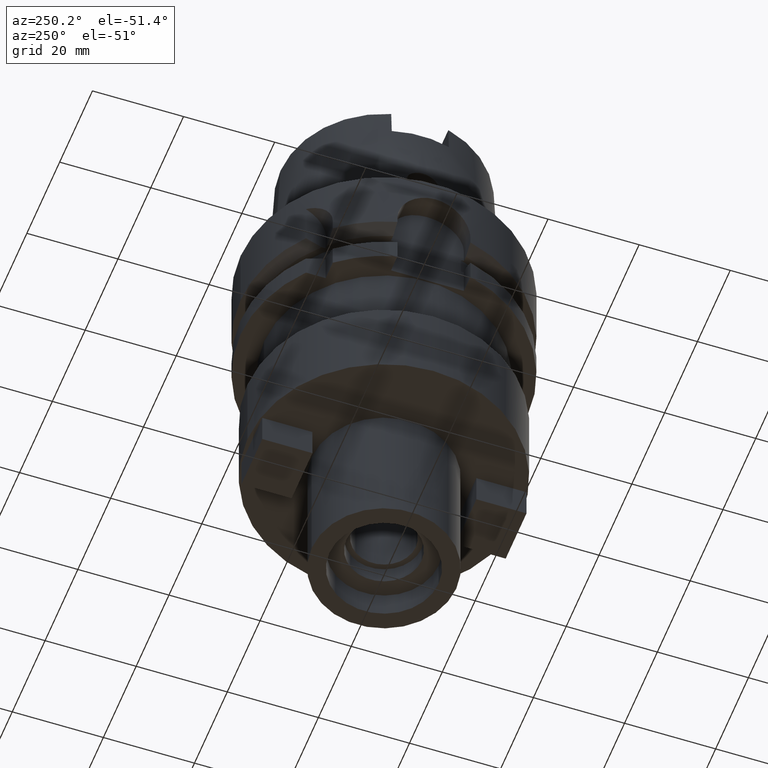
[diagram: clean part render]
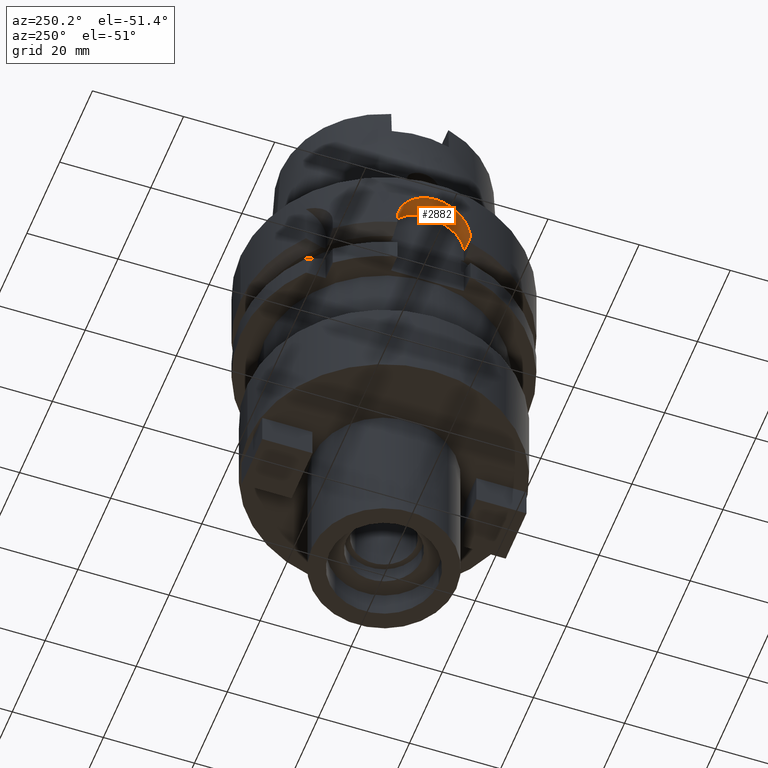
[diagram: same view with one face highlighted and labeled with its STEP entity id]
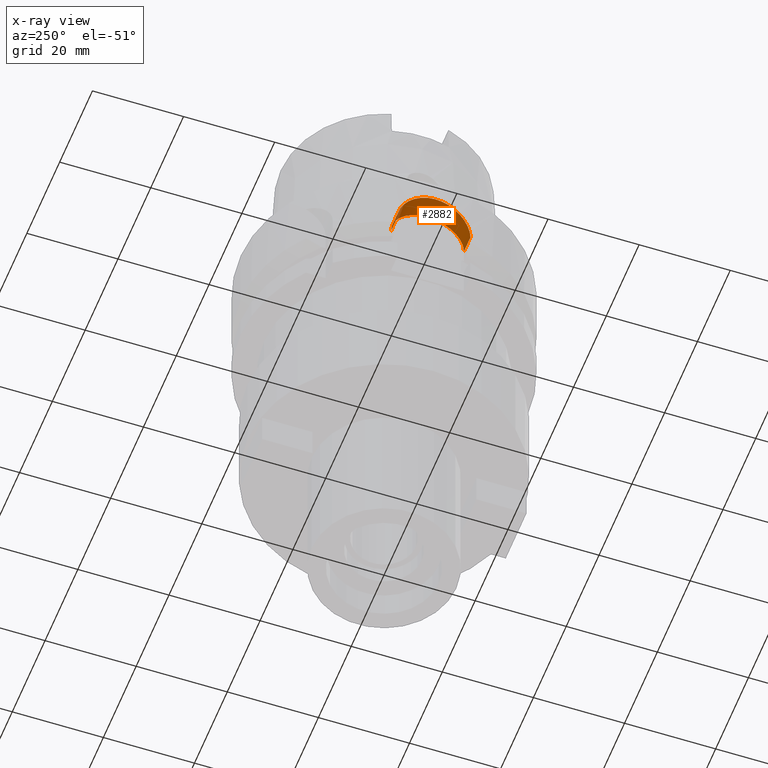
[diagram: x-ray of the same camera — body ghosted, the highlighted face saturated]
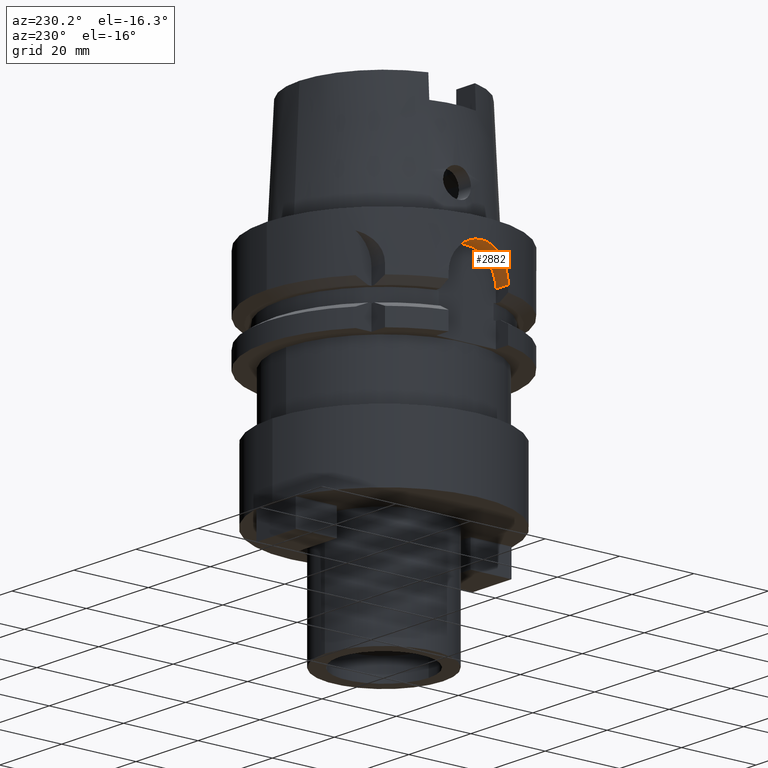
[diagram: same view with one face highlighted and labeled with its STEP entity id]
A machine part, auxiliary view. The second image highlights one B-rep face of the part: STEP entity #2882.
The next image is the same camera in x-ray: the body ghosted, the highlighted face saturated — about 0% of this face is hidden behind the body in this view.
A second angle (auxiliary view) of the same face is appended — the face is thin or edge-on in the first view.
In plain terms, the highlighted cylindrical surface (partial cylindrical patch) has radius 8 mm, axis along (1, 0, 0).
Its self-contained STEP definition (entity closure, byte-faithful):
#570=CARTESIAN_POINT('',(-3.046719547316E1,8.E0,-1.3E1));
#571=CARTESIAN_POINT('',(-3.046719547316E1,8.E0,-1.245224003607E1));
#572=CARTESIAN_POINT('',(-3.049727303426E1,7.887058323595E0,-1.135073918024E1));
#573=CARTESIAN_POINT('',(-3.062689466042E1,7.375462100777E0,-9.752102770187E0));
#574=CARTESIAN_POINT('',(-3.082074453848E1,6.532773635205E0,-8.278876849185E0));
#575=CARTESIAN_POINT('',(-3.104430623296E1,5.390237385849E0,-7.006966913826E0));
#576=CARTESIAN_POINT('',(-3.125563068838E1,4.008870959063E0,-6.008196302168E0));
#577=CARTESIAN_POINT('',(-3.141705811214E1,2.464778611533E0,-5.328000548067E0));
#578=CARTESIAN_POINT('',(-3.150356827909E1,8.304197450128E-1,
-4.985634634504E0));
#579=CARTESIAN_POINT('',(-3.150352683520E1,-8.321668194072E-1,
-4.985822563404E0));
#580=CARTESIAN_POINT('',(-3.141693342003E1,-2.466337132339E0,
-5.328506065960E0));
#581=CARTESIAN_POINT('',(-3.125544521441E1,-4.010327446364E0,
-6.009023176731E0));
#582=CARTESIAN_POINT('',(-3.104408251685E1,-5.391520358267E0,
-7.008128874597E0));
#583=CARTESIAN_POINT('',(-3.082053940857E1,-6.533720827611E0,
-8.280182636067E0));
#584=CARTESIAN_POINT('',(-3.062672186404E1,-7.376197431370E0,
-9.753750452463E0));
#585=CARTESIAN_POINT('',(-3.049718861268E1,-7.887319828262E0,
-1.135225951337E1));
#586=CARTESIAN_POINT('',(-3.046719547316E1,-8.E0,-1.245284904069E1));
#587=CARTESIAN_POINT('',(-3.046719547316E1,-8.E0,-1.3E1));
#592=DIRECTION('',(1.E0,8.686570378874E-14,0.E0));
#593=VECTOR('',#592,3.967195473161E0);
#594=CARTESIAN_POINT('',(-3.046719547316E1,-8.E0,-1.3E1));
#595=LINE('',#594,#593);
#599=DIRECTION('',(-1.E0,8.776122650821E-14,0.E0));
#600=VECTOR('',#599,3.967195473161E0);
#601=CARTESIAN_POINT('',(-2.65E1,8.E0,-1.3E1));
#602=LINE('',#601,#600);
#673=CARTESIAN_POINT('',(-2.65E1,0.E0,-1.3E1));
#674=DIRECTION('',(1.E0,0.E0,0.E0));
#675=DIRECTION('',(0.E0,1.E0,0.E0));
#676=AXIS2_PLACEMENT_3D('',#673,#674,#675);
#681=CARTESIAN_POINT('',(-2.65E1,0.E0,-1.3E1));
#682=DIRECTION('',(1.E0,0.E0,0.E0));
#683=DIRECTION('',(0.E0,0.E0,1.E0));
#684=AXIS2_PLACEMENT_3D('',#681,#682,#683);
#2400=CARTESIAN_POINT('',(-2.65E1,-8.E0,-1.3E1));
#2401=VERTEX_POINT('',#2400);
#2402=CARTESIAN_POINT('',(-3.046719547316E1,-8.E0,-1.3E1));
#2403=VERTEX_POINT('',#2402);
#2414=CARTESIAN_POINT('',(-2.65E1,8.E0,-1.3E1));
#2415=VERTEX_POINT('',#2414);
#2416=CARTESIAN_POINT('',(-2.65E1,0.E0,-5.E0));
#2417=VERTEX_POINT('',#2416);
#2426=CARTESIAN_POINT('',(-3.046719547316E1,8.E0,-1.3E1));
#2427=VERTEX_POINT('',#2426);
#2867=CARTESIAN_POINT('',(-3.15E1,0.E0,-1.3E1));
#2868=DIRECTION('',(1.E0,0.E0,0.E0));
#2869=DIRECTION('',(0.E0,0.E0,1.E0));
#2870=AXIS2_PLACEMENT_3D('',#2867,#2868,#2869);
#2871=CYLINDRICAL_SURFACE('',#2870,8.E0);
#2872=ORIENTED_EDGE('',*,*,#2754,.T.);
#2874=ORIENTED_EDGE('',*,*,#2873,.T.);
#2876=ORIENTED_EDGE('',*,*,#2875,.F.);
#2878=ORIENTED_EDGE('',*,*,#2877,.F.);
#2879=ORIENTED_EDGE('',*,*,#2860,.T.);
#2880=EDGE_LOOP('',(#2872,#2874,#2876,#2878,#2879));
#2881=FACE_OUTER_BOUND('',#2880,.F.);
#588=B_SPLINE_CURVE_WITH_KNOTS('',3,(#570,#571,#572,#573,#574,#575,#576,#577,
#578,#579,#580,#581,#582,#583,#584,#585,#586,#587),.UNSPECIFIED.,.F.,.F.,(4,1,1,
1,1,1,1,1,1,1,1,1,1,1,1,4),(0.E0,6.666666666667E-2,1.333333333333E-1,2.E-1,
2.666666666667E-1,3.333333333333E-1,4.E-1,4.666666666667E-1,5.333333333333E-1,
6.E-1,6.666666666667E-1,7.333333333333E-1,8.E-1,8.666666666667E-1,
9.333333333333E-1,1.E0),.UNSPECIFIED.);
#677=CIRCLE('',#676,8.E0);
#685=CIRCLE('',#684,8.E0);
#2754=EDGE_CURVE('',#2427,#2403,#588,.T.);
#2860=EDGE_CURVE('',#2415,#2427,#602,.T.);
#2873=EDGE_CURVE('',#2403,#2401,#595,.T.);
#2875=EDGE_CURVE('',#2417,#2401,#685,.T.);
#2877=EDGE_CURVE('',#2415,#2417,#677,.T.);
#2882=ADVANCED_FACE('',(#2881),#2871,.F.);